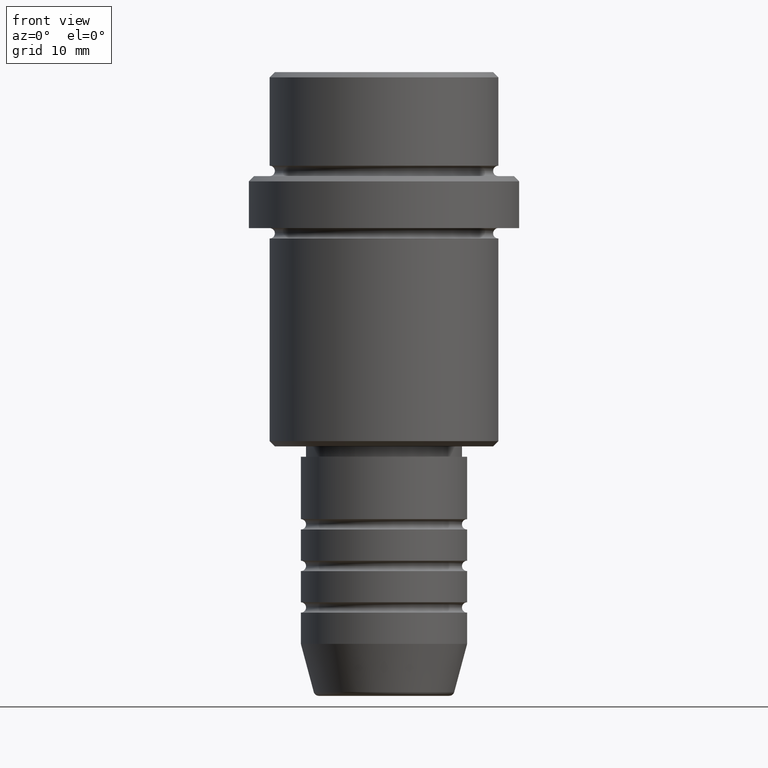
[diagram: clean part render]
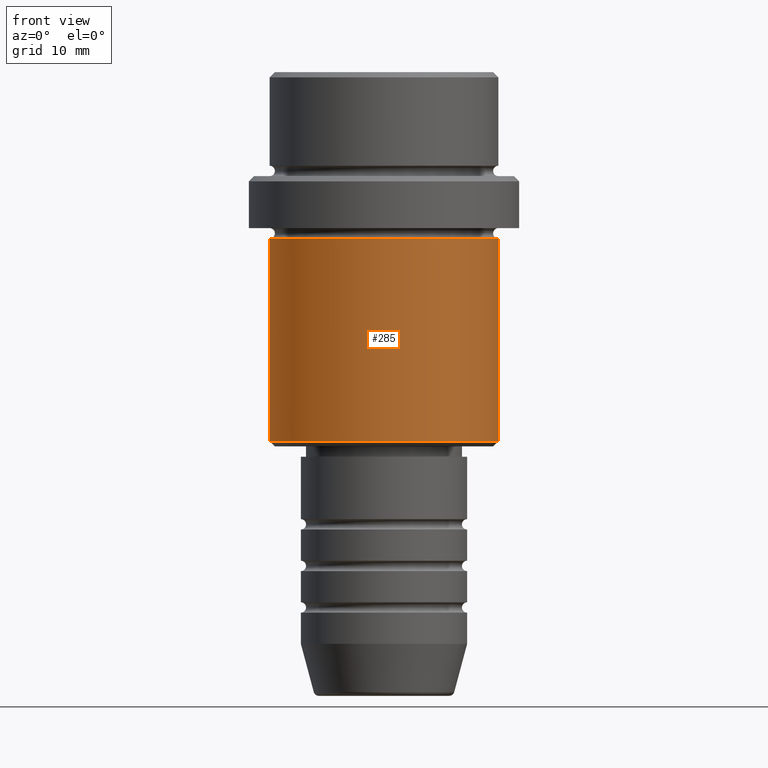
[diagram: same view with one face highlighted and labeled with its STEP entity id]
A machine part, front view. The second image highlights one B-rep face of the part: STEP entity #285.
In plain terms, the highlighted cylindrical surface (partial cylindrical patch) has radius 11 mm, axis along (-0, -0, 1).
Its self-contained STEP definition (entity closure, byte-faithful):
#24 = CARTESIAN_POINT ( 'NONE',  ( 0.000000000000000000, 0.000000000000000000, -16.00000000000000355 ) ) ;
#67 = VECTOR ( 'NONE', #288, 1000.000000000000000 ) ;
#83 = ORIENTED_EDGE ( 'NONE', *, *, #875, .F. ) ;
#141 = VERTEX_POINT ( 'NONE', #758 ) ;
#194 = FACE_OUTER_BOUND ( 'NONE', #275, .T. ) ;
#214 = CARTESIAN_POINT ( 'NONE',  ( 0.000000000000000000, 0.000000000000000000, 0.000000000000000000 ) ) ;
#275 = EDGE_LOOP ( 'NONE', ( #83, #1318, #807, #595 ) ) ;
#285 = ADVANCED_FACE ( 'NONE', ( #194 ), #1398, .T. ) ;
#288 = DIRECTION ( 'NONE',  ( -0.000000000000000000, -0.000000000000000000, 1.000000000000000000 ) ) ;
#342 = AXIS2_PLACEMENT_3D ( 'NONE', #24, #787, #1010 ) ;
#487 = EDGE_CURVE ( 'NONE', #642, #141, #949, .T. ) ;
#500 = CARTESIAN_POINT ( 'NONE',  ( 10.99999999999998757, 0.000000000000000000, -35.50000000000001421 ) ) ;
#595 = ORIENTED_EDGE ( 'NONE', *, *, #487, .F. ) ;
#615 = CIRCLE ( 'NONE', #935, 10.99999999999998757 ) ;
#642 = VERTEX_POINT ( 'NONE', #1321 ) ;
#645 = DIRECTION ( 'NONE',  ( 1.000000000000000000, 0.000000000000000000, 0.000000000000000000 ) ) ;
#691 = DIRECTION ( 'NONE',  ( -0.000000000000000000, -0.000000000000000000, 1.000000000000000000 ) ) ;
#739 = DIRECTION ( 'NONE',  ( -0.000000000000000000, -0.000000000000000000, 1.000000000000000000 ) ) ;
#740 = DIRECTION ( 'NONE',  ( -1.000000000000000000, 0.000000000000000000, 0.000000000000000000 ) ) ;
#757 = LINE ( 'NONE', #1359, #67 ) ;
#758 = CARTESIAN_POINT ( 'NONE',  ( 10.99999999999997158, 0.000000000000000000, -16.00000000000000355 ) ) ;
#787 = DIRECTION ( 'NONE',  ( -0.000000000000000000, -0.000000000000000000, 1.000000000000000000 ) ) ;
#807 = ORIENTED_EDGE ( 'NONE', *, *, #1247, .T. ) ;
#864 = VECTOR ( 'NONE', #691, 1000.000000000000000 ) ;
#875 = EDGE_CURVE ( 'NONE', #1249, #642, #1128, .T. ) ;
#935 = AXIS2_PLACEMENT_3D ( 'NONE', #1313, #954, #740 ) ;
#949 = CIRCLE ( 'NONE', #342, 10.99999999999997158 ) ;
#954 = DIRECTION ( 'NONE',  ( -0.000000000000000000, -0.000000000000000000, 1.000000000000000000 ) ) ;
#1006 = CARTESIAN_POINT ( 'NONE',  ( -10.99999999999998757, 1.347111479062086827E-15, 0.000000000000000000 ) ) ;
#1010 = DIRECTION ( 'NONE',  ( 1.000000000000000000, 0.000000000000000000, 0.000000000000000000 ) ) ;
#1128 = LINE ( 'NONE', #1006, #864 ) ;
#1172 = CARTESIAN_POINT ( 'NONE',  ( -10.99999999999998757, 1.347111479062086827E-15, -35.50000000000001421 ) ) ;
#1202 = EDGE_CURVE ( 'NONE', #1249, #1395, #615, .T. ) ;
#1247 = EDGE_CURVE ( 'NONE', #1395, #141, #757, .T. ) ;
#1249 = VERTEX_POINT ( 'NONE', #1172 ) ;
#1313 = CARTESIAN_POINT ( 'NONE',  ( 0.000000000000000000, 0.000000000000000000, -35.50000000000001421 ) ) ;
#1318 = ORIENTED_EDGE ( 'NONE', *, *, #1202, .T. ) ;
#1321 = CARTESIAN_POINT ( 'NONE',  ( -10.99999999999997158, 1.347111479062085841E-15, -16.00000000000000355 ) ) ;
#1359 = CARTESIAN_POINT ( 'NONE',  ( 10.99999999999998757, 0.000000000000000000, 0.000000000000000000 ) ) ;
#1363 = AXIS2_PLACEMENT_3D ( 'NONE', #214, #739, #645 ) ;
#1395 = VERTEX_POINT ( 'NONE', #500 ) ;
#1398 = CYLINDRICAL_SURFACE ( 'NONE', #1363, 10.99999999999998757 ) ;